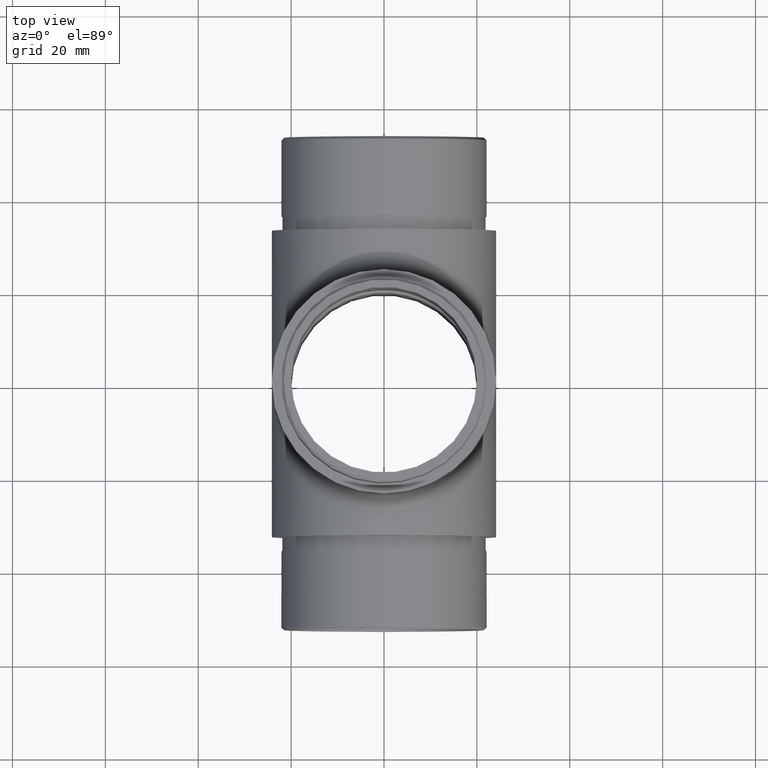
[diagram: clean part render]
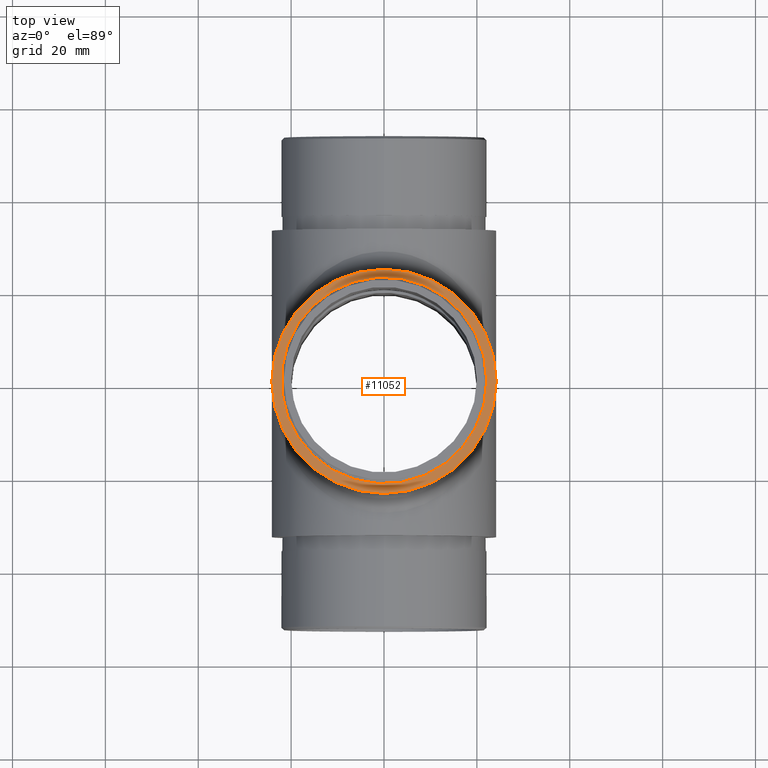
[diagram: same view with one face highlighted and labeled with its STEP entity id]
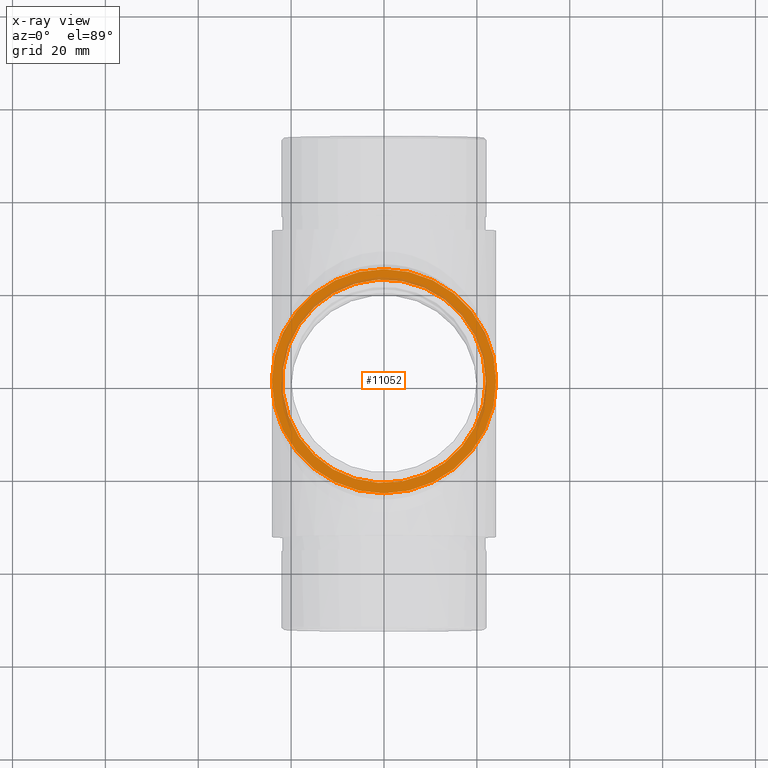
[diagram: x-ray of the same camera — body ghosted, the highlighted face saturated]
A machine part, top view. The second image highlights one B-rep face of the part: STEP entity #11052.
The next image is the same camera in x-ray: the body ghosted, the highlighted face saturated — about 10% of this face is hidden behind the body in this view.
In plain terms, the highlighted planar face has unit normal (0, 0, 1).
Its self-contained STEP definition (entity closure, byte-faithful):
#499 = DIRECTION ( 'NONE',  ( 1.000000000000000000, 0.0000000000000000000, 0.0000000000000000000 ) ) ;
#824 = EDGE_LOOP ( 'NONE', ( #2848 ) ) ;
#1155 = CIRCLE ( 'NONE', #6216, 21.89999999999999900 ) ;
#2453 = VERTEX_POINT ( 'NONE', #11953 ) ;
#2848 = ORIENTED_EDGE ( 'NONE', *, *, #4352, .T. ) ;
#3397 = CARTESIAN_POINT ( 'NONE',  ( 0.0000000000000000000, 0.0000000000000000000, 33.00000000000000000 ) ) ;
#3713 = FACE_OUTER_BOUND ( 'NONE', #824, .T. ) ;
#4020 = AXIS2_PLACEMENT_3D ( 'NONE', #6180, #7217, #12134 ) ;
#4352 = EDGE_CURVE ( 'NONE', #4917, #4917, #4762, .T. ) ;
#4762 = CIRCLE ( 'NONE', #10153, 24.15000000000000600 ) ;
#4917 = VERTEX_POINT ( 'NONE', #9957 ) ;
#5397 = FACE_BOUND ( 'NONE', #5758, .T. ) ;
#5432 = ORIENTED_EDGE ( 'NONE', *, *, #8705, .F. ) ;
#5758 = EDGE_LOOP ( 'NONE', ( #5432 ) ) ;
#6180 = CARTESIAN_POINT ( 'NONE',  ( 0.0000000000000000000, 0.0000000000000000000, 33.00000000000000000 ) ) ;
#6216 = AXIS2_PLACEMENT_3D ( 'NONE', #11622, #7828, #10788 ) ;
#7217 = DIRECTION ( 'NONE',  ( 0.0000000000000000000, 0.0000000000000000000, 1.000000000000000000 ) ) ;
#7828 = DIRECTION ( 'NONE',  ( 0.0000000000000000000, 0.0000000000000000000, 1.000000000000000000 ) ) ;
#8705 = EDGE_CURVE ( 'NONE', #2453, #2453, #1155, .T. ) ;
#9235 = PLANE ( 'NONE',  #4020 ) ;
#9957 = CARTESIAN_POINT ( 'NONE',  ( 24.15000000000000600, 0.0000000000000000000, 33.00000000000000000 ) ) ;
#10153 = AXIS2_PLACEMENT_3D ( 'NONE', #3397, #12214, #499 ) ;
#10788 = DIRECTION ( 'NONE',  ( 1.000000000000000000, 0.0000000000000000000, 0.0000000000000000000 ) ) ;
#11052 = ADVANCED_FACE ( 'NONE', ( #3713, #5397 ), #9235, .T. ) ;
#11622 = CARTESIAN_POINT ( 'NONE',  ( 0.0000000000000000000, 0.0000000000000000000, 33.00000000000000000 ) ) ;
#11953 = CARTESIAN_POINT ( 'NONE',  ( 21.89999999999999900, 0.0000000000000000000, 33.00000000000000000 ) ) ;
#12134 = DIRECTION ( 'NONE',  ( 1.000000000000000000, 0.0000000000000000000, -0.0000000000000000000 ) ) ;
#12214 = DIRECTION ( 'NONE',  ( 0.0000000000000000000, 0.0000000000000000000, 1.000000000000000000 ) ) ;